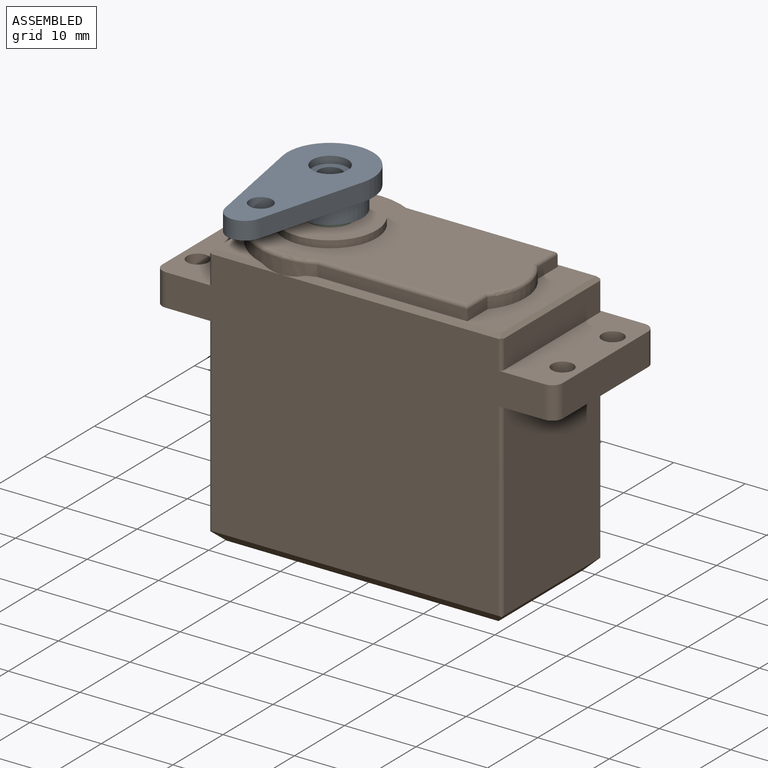
[diagram: assembled view]
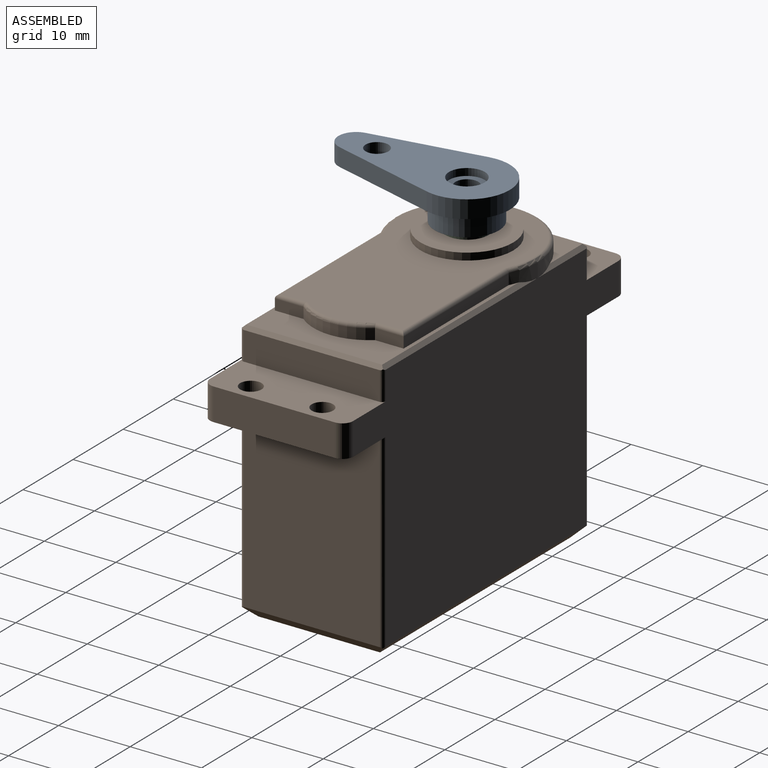
[diagram: assembled view, second angle]
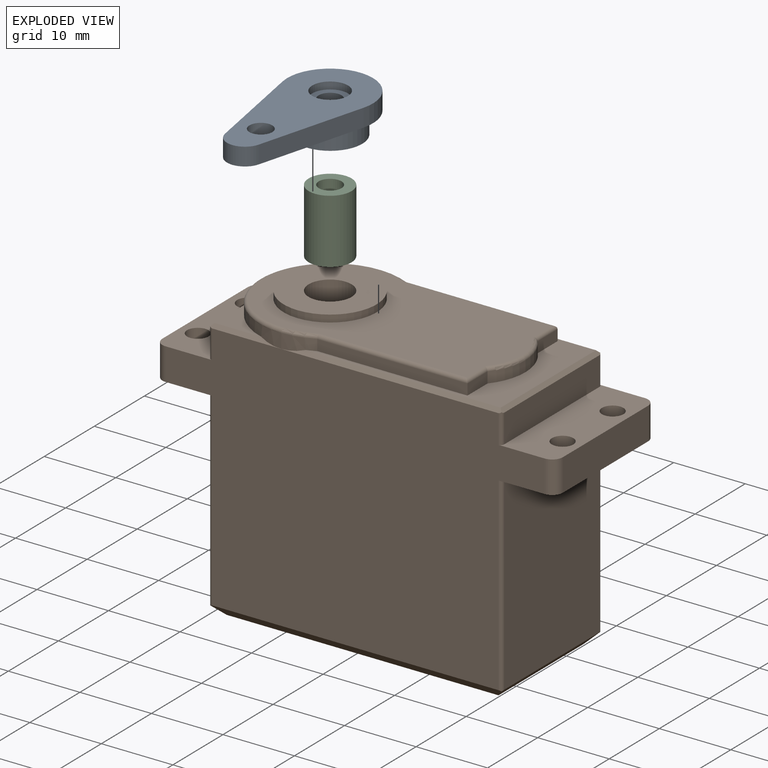
[diagram: exploded view]
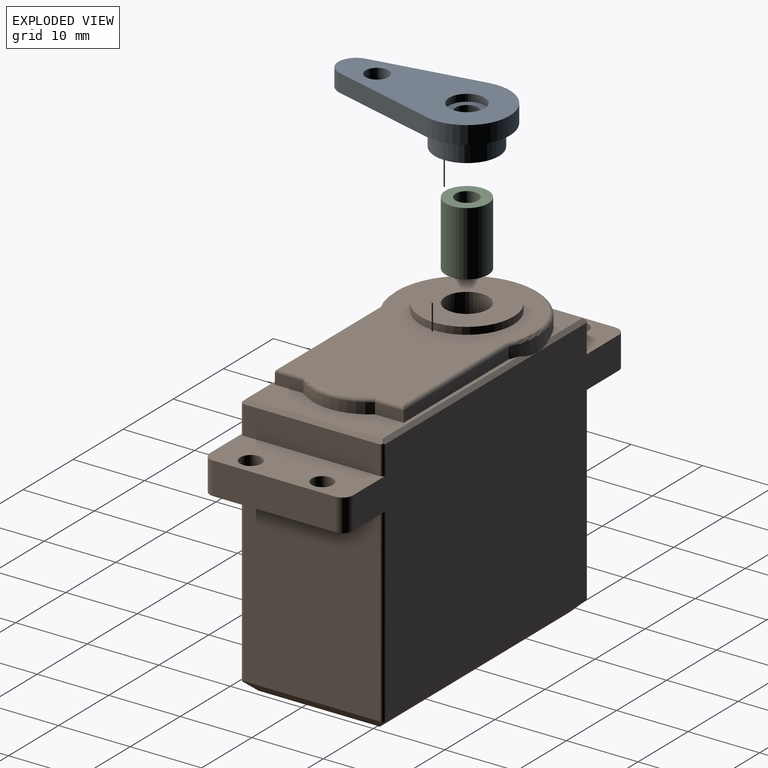
[diagram: exploded view, second angle]
ASSEMBLY  parts=3 mates=4
PART A: 14 faces, bbox 12x24.5x5.5 mm
  f0: cylinder r=1.6mm len=3.2mm, axis (0,0,1), area 15.1mm2, adj f10,f13
  f1: cylinder r=4.5mm len=9mm, axis (0,0,-1), area 84.8mm2, adj f2,f8
  f2: plane 9x9mm, normal (0,0,-1), area 35.3mm2, adj f1,f12
  f3: plane 15.23x3.42mm, normal (0.98,-0.22,0), area 39mm2, adj f4,f6,f7,f8
  f4: cylinder r=6mm len=12mm, axis (0,0,-1), area 53.7mm2, adj f3,f5,f7,f8
  f5: plane 15.23x3.42mm, normal (-0.98,-0.22,0), area 39mm2, adj f4,f6,f7,f8
  f6: cylinder r=2.5mm len=4.88mm, axis (0,0,-1), area 16.9mm2, adj f3,f5,f7,f8
  f7: plane 24.5x12mm, normal (0,0,1), area 178mm2, adj f3,f4,f5,f6,f9,f11
  f8: plane 24.5x12mm, normal (0,0,-1), area 134mm2, adj f1,f3,f4,f5,f6,f11
  f9: cylinder r=2.5mm len=5mm, axis (0,0,1), area 15.7mm2, adj f7,f10
  f10: plane 5x5mm, normal (0,0,1), area 11.6mm2, adj f0,f9
  f11: cylinder r=1.6mm len=3.2mm, axis (0,0,1), area 25.1mm2, adj f7,f8
  f12: cylinder r=3mm len=6mm, axis (0,0,-1), area 56.5mm2, adj f2,f13
  f13: plane 6x6mm, normal (0,0,-1), area 20.2mm2, adj f0,f12
PART B: 59 faces, bbox 56x40x21.6 mm
  f0: plane 6.85x6.52mm, normal (0,-1,0), area 14.7mm2, adj f20,f39,f41
  f1: plane 27.24x19mm, normal (0,-1,0), area 104.2mm2, adj f16,f17,f18,f19,f20,f21,f42,f43
  f2: plane 19x4mm, normal (1,0,0), area 76mm2, adj f3,f44,f53,f54
  f3: plane 20x8mm, normal (0,-1,0), area 135mm2, adj f2,f4,f14,f15,f29,f30,f36,f38
  f4: plane 17x4.5mm, normal (1,0,0), area 76.5mm2, adj f3,f5,f36,f38
  f5: plane 20x8mm, normal (0,1,0), area 135mm2, adj f4,f6,f14,f15,f29,f30,f36,f38
  f6: plane 26.5x19mm, normal (1,0,0), area 503.5mm2, adj f5,f34,f56,f58
  f7: plane 38x17mm, normal (0,1,0), area 646mm2, adj f31,f32,f33,f34
  f8: plane 26.5x19mm, normal (-1,0,0), area 503.5mm2, adj f9,f31,f55,f57
  f9: plane 20x8mm, normal (0,1,0), area 135mm2, adj f8,f10,f14,f15,f27,f28,f35,f37
  f10: plane 17x4.5mm, normal (-1,0,0), area 76.5mm2, adj f9,f11,f35,f37
  f11: plane 20x8mm, normal (0,-1,0), area 135mm2, adj f10,f12,f14,f15,f27,f28,f35,f37
  f12: plane 19x4mm, normal (-1,0,0), area 76mm2, adj f11,f39,f51,f52
  f13: plane 6.85x6.52mm, normal (0,-1,0), area 14.7mm2, adj f20,f39,f40
  f14: plane 53x35mm, normal (0,0,1), area 1458.5mm2, adj f3,f5,f9,f11,f32,f37,f38,f40
  f15: plane 53x35mm, normal (0,0,-1), area 1458.5mm2, adj f3,f5,f9,f11,f33,f35,f36,f41
  f16: plane 4x1.5mm, normal (1,0,0), area 6mm2, adj f1,f17,f21,f47
  f17: cylinder r=7.81mm len=10mm, axis (0,1,0), area 16.3mm2, adj f1,f16,f18,f45
  f18: plane 4x1.5mm, normal (1,0,0), area 6mm2, adj f1,f17,f19,f46
  f19: plane 21x1.5mm, normal (0,0,1), area 31.5mm2, adj f1,f18,f20,f48
  f20: cylinder r=10mm len=20mm, axis (0,1,0), area 66.2mm2, adj f0,f1,f13,f19,f21,f39,f40,f41
  f21: plane 21x1.5mm, normal (0,0,-1), area 31.5mm2, adj f1,f16,f20,f49
  f22: plane 36.17x19mm, normal (0,-1,0), area 449.3mm2, adj f23,f45,f46,f47,f48,f49,f50
  f23: cylinder r=6.5mm len=13mm, axis (0,1,0), area 40.8mm2, adj f22,f24
  f24: plane 13x13mm, normal (0,-1,0), area 104.5mm2, adj f23,f25
  f25: cylinder r=3mm len=6mm, axis (0,-1,0), area 94.2mm2, adj f24,f26
  f26: plane 6x6mm, normal (0,-1,0), area 28.3mm2, adj f25
  f27: cylinder r=1.5mm len=4.5mm, axis (0,-1,0), area 42.4mm2, adj f9,f11
  f28: cylinder r=1.5mm len=4.5mm, axis (0,-1,0), area 42.4mm2, adj f9,f11
  f29: cylinder r=1.5mm len=4.5mm, axis (0,-1,0), area 42.4mm2, adj f3,f5
  f30: cylinder r=1.5mm len=4.5mm, axis (0,-1,0), area 42.4mm2, adj f3,f5
  f31: plane 19.71x1.5mm, normal (-0.71,0.71,0), area 39.2mm2, adj f7,f8,f32,f33,f55,f57
  f32: plane 40.71x1.5mm, normal (0,0.71,0.71), area 83.7mm2, adj f7,f14,f31,f34,f57,f58
  f33: plane 40.71x1.5mm, normal (0,0.71,-0.71), area 83.7mm2, adj f7,f15,f31,f34,f55,f56
  f34: plane 19.71x1.5mm, normal (0.71,0.71,0), area 39.2mm2, adj f6,f7,f32,f33,f56,f58
  f35: cylinder r=1.5mm len=4.5mm, axis (0,-1,0), area 10.6mm2, adj f9,f10,f11,f15
  f36: cylinder r=1.5mm len=4.5mm, axis (0,1,0), area 10.6mm2, adj f3,f4,f5,f15
  f37: cylinder r=1.5mm len=4.5mm, axis (0,1,0), area 10.6mm2, adj f9,f10,f11,f14
  f38: cylinder r=1.5mm len=4.5mm, axis (0,-1,0), area 10.6mm2, adj f3,f4,f5,f14
  f39: plane 19.71x0.5mm, normal (-0.71,-0.71,0), area 11.9mm2, adj f0,f12,f13,f20,f40,f41,f51,f52
  f40: plane 9.99x0.5mm, normal (0,-0.71,0.71), area 5.5mm2, adj f13,f14,f20,f39,f51
  f41: plane 9.99x0.5mm, normal (0,-0.71,-0.71), area 5.5mm2, adj f0,f15,f20,f39,f52
  f42: plane 30.71x0.5mm, normal (0,-0.71,0.71), area 20.1mm2, adj f1,f14,f20,f44,f53
  f43: plane 30.71x0.5mm, normal (0,-0.71,-0.71), area 20.1mm2, adj f1,f15,f20,f44,f54
  f44: plane 19.71x0.5mm, normal (0.71,-0.71,0), area 13.7mm2, adj f1,f2,f42,f43,f53,f54
  f45: torus R=7.31mm, axis (0,-1,0), area 8.4mm2, adj f17,f22,f46,f47
  f46: cylinder r=0.5mm len=4.18mm, axis (0,0,-1), area 3.1mm2, adj f18,f22,f45,f48
  f47: cylinder r=0.5mm len=4.18mm, axis (0,0,-1), area 3.1mm2, adj f16,f22,f45,f49
  f48: cylinder r=0.5mm len=21.12mm, axis (1,0,0), area 16.4mm2, adj f19,f22,f46,f50
  f49: cylinder r=0.5mm len=21.12mm, axis (-1,0,0), area 16.4mm2, adj f21,f22,f47,f50
  f50: torus R=9.5mm, axis (0,-1,0), area 31.2mm2, adj f20,f22,f48,f49
  f51: cylinder r=0.5mm len=4.15mm, axis (0,1,0), area 3.2mm2, adj f11,f12,f14,f39,f40
  f52: cylinder r=0.5mm len=4.15mm, axis (0,-1,0), area 3.2mm2, adj f11,f12,f15,f39,f41
  f53: cylinder r=0.5mm len=4.15mm, axis (0,-1,0), area 3.2mm2, adj f2,f3,f14,f42,f44
  f54: cylinder r=0.5mm len=4.15mm, axis (0,1,0), area 3.2mm2, adj f2,f3,f15,f43,f44
  f55: cylinder r=0.5mm len=26.65mm, axis (0,-1,0), area 20.9mm2, adj f8,f9,f15,f31,f33
  f56: cylinder r=0.5mm len=26.65mm, axis (0,1,0), area 20.9mm2, adj f5,f6,f15,f33,f34
  f57: cylinder r=0.5mm len=26.65mm, axis (0,1,0), area 20.9mm2, adj f8,f9,f14,f31,f32
  f58: cylinder r=0.5mm len=26.65mm, axis (0,-1,0), area 20.9mm2, adj f5,f6,f14,f32,f34
PART C: 5 faces, bbox 6x6x9 mm
  f0: cylinder r=3mm len=9mm, axis (0,0,-1), area 169.6mm2, adj f1,f2
  f1: plane 6x6mm, normal (0,0,1), area 20.2mm2, adj f0,f3
  f2: plane 6x6mm, normal (0,0,-1), area 28.3mm2, adj f0
  f3: cylinder r=1.6mm len=7.5mm, axis (0,0,1), area 75.4mm2, adj f1,f4
  f4: plane 3.2x3.2mm, normal (0,0,1), area 8mm2, adj f3
PLACE A rot(axis=(0,0,-1),2.6deg) t=(31.7,-16.73,7.96)mm
PLACE B rot(axis=(-1,0,0),90deg) t=(21.7,-26.73,3.96)mm fixed
PLACE C rot(axis=(0,0,1),138.7deg) t=(31.7,-16.73,1.96)mm
MATE planar A.f12 <-> C.f0  axis (0,0,-1) through (31.7,-16.73,10.96)mm
MATE cylindrical A.f0 <-> C.f3  axis (0,0,1) through (31.7,-16.73,12.46)mm
MATE planar B.f23 <-> C.f0  axis (0,0,1) through (31.7,-16.73,1.96)mm
MATE cylindrical B.f23 <-> C.f0  axis (0,0,1) through (31.7,-16.73,6.96)mm
